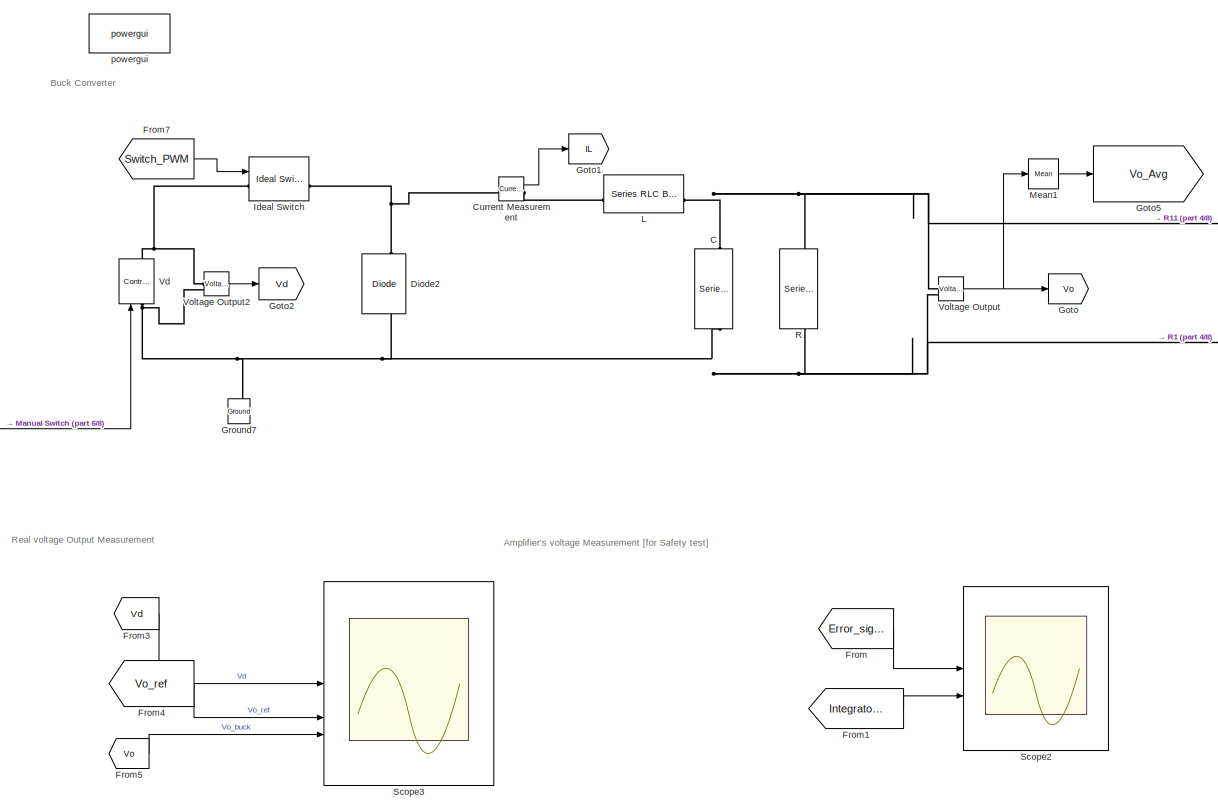
[diagram: root canvas - part 1/8, middle left region]
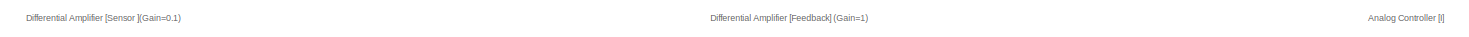
[diagram: root canvas - part 2/8, top center region]
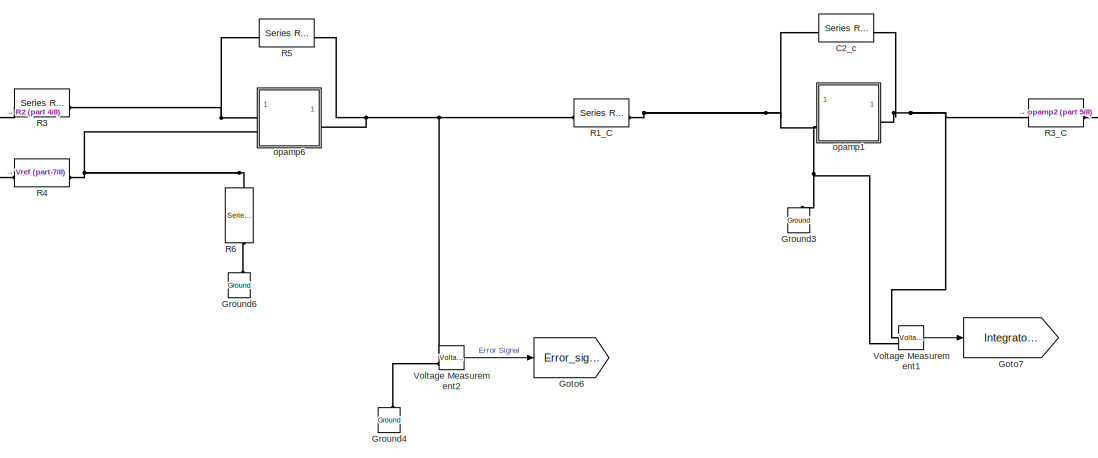
[diagram: root canvas - part 3/8, top right region]
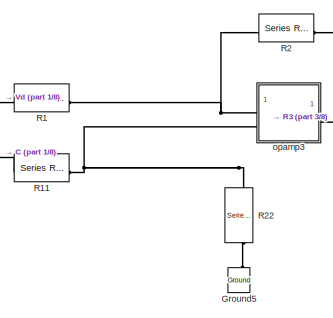
[diagram: root canvas - part 4/8, top center region]
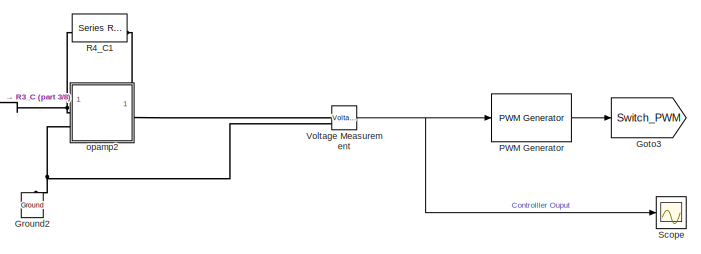
[diagram: root canvas - part 5/8, top right region]
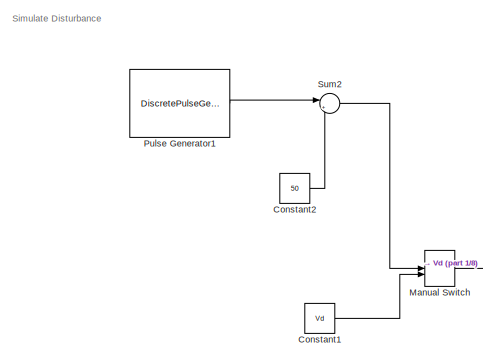
[diagram: root canvas - part 6/8, top left region]
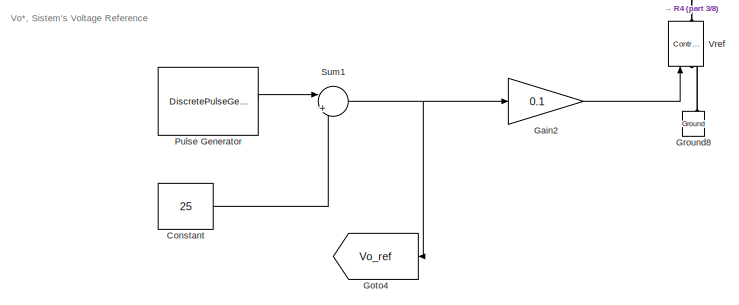
[diagram: root canvas - part 7/8, central region]
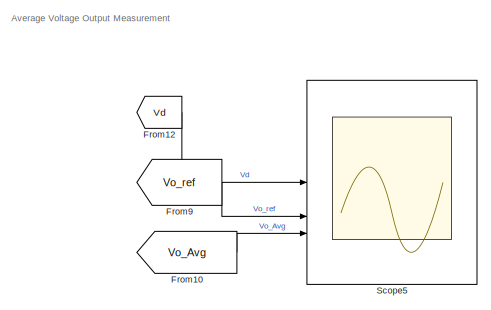
[diagram: root canvas - part 8/8, bottom left region]
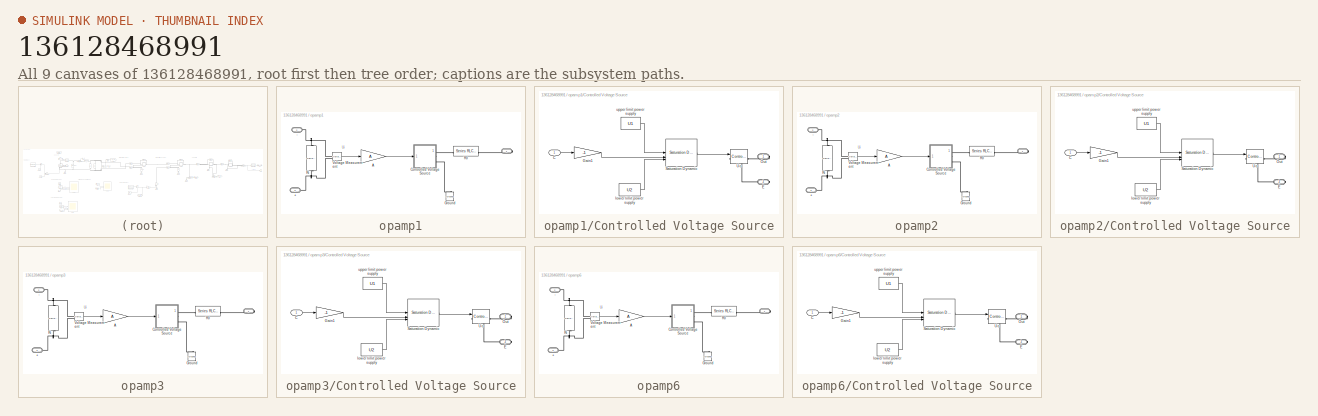
[diagram: thumbnail index - all 9 canvases of the model, root first then tree order]
MODEL slx_136128468991
KIND model
CONFIG AbsTol = auto
CONFIG EnableMultiTasking = off
CONFIG FixedStep = auto
CONFIG MaxStep = auto
CONFIG MinStep = auto
CONFIG RelTol = 1e-6
CONFIG SampleTimeConstraint = Unconstrained
CONFIG SolverName = VariableStepAuto
CONFIG StartTime = 0.0
CONFIG StopTime = 1
BLOCK [Reference] C  REF=spsSeriesRLCBranchLib/Series RLC Branch
  LibrarySourceBlock = sps_lib/Passives/Series RLC Branch
  NameLocation = left
  SourceBlock = spsSeriesRLCBranchLib/Series RLC Branch
  SourceType = Series RLC Branch
BLOCK [Reference] C2_c  REF=spsSeriesRLCBranchLib/Series RLC Branch
  LibrarySourceBlock = sps_lib/Passives/Series RLC Branch
  SourceBlock = spsSeriesRLCBranchLib/Series RLC Branch
  SourceType = Series RLC Branch
BLOCK [Constant] Constant
  Value = 25
BLOCK [Constant] Constant1
  Value = Vd
BLOCK [Constant] Constant2
  Value = 50
BLOCK [Reference] Current Measurement  REF=spsCurrentMeasurementLib/Current Measurement
  LibrarySourceBlock = sps_lib/Sensors and Measurements/Current Measurement
  SourceBlock = spsCurrentMeasurementLib/Current Measurement
  SourceType = Current Measurement
  UserDataPersistent = on
BLOCK [Reference] Diode2  REF=spsDiodeLib/Diode
  LibrarySourceBlock = sps_lib/Power Electronics/Diode
  NameLocation = right
  SourceBlock = spsDiodeLib/Diode
  SourceType = Diode
BLOCK [From] From
  GotoTag = Error_signal
BLOCK [From] From1
  GotoTag = Integrator_Output
BLOCK [From] From10
  GotoTag = Vo_Avg
BLOCK [From] From12
  GotoTag = Vd
BLOCK [From] From3
  GotoTag = Vd
BLOCK [From] From4
  GotoTag = Vo_ref
  NameLocation = top
BLOCK [From] From5
  GotoTag = Vo
BLOCK [From] From7
  GotoTag = Switch_PWM
BLOCK [From] From9
  GotoTag = Vo_ref
  NameLocation = top
BLOCK [Gain] Gain2
  Gain = 0.1
BLOCK [Goto] Goto
  GotoTag = Vo
BLOCK [Goto] Goto1
  GotoTag = IL
  NameLocation = top
BLOCK [Goto] Goto2
  GotoTag = Vd
BLOCK [Goto] Goto3
  GotoTag = Switch_PWM
BLOCK [Goto] Goto4
  GotoTag = Vo_ref
  NameLocation = top
BLOCK [Goto] Goto5
  GotoTag = Vo_Avg
BLOCK [Goto] Goto6
  GotoTag = Error_signal
  NameLocation = top
BLOCK [Goto] Goto7
  GotoTag = Integrator_Output
  NameLocation = top
BLOCK [Reference] Ground2  REF=spsGroundLib/Ground
  LibrarySourceBlock = sps_lib/Utilities/Ground
  NameLocation = right
  SourceBlock = spsGroundLib/Ground
  SourceType = Ground
BLOCK [Reference] Ground3  REF=spsGroundLib/Ground
  LibrarySourceBlock = sps_lib/Utilities/Ground
  NameLocation = right
  SourceBlock = spsGroundLib/Ground
  SourceType = Ground
BLOCK [Reference] Ground4  REF=spsGroundLib/Ground
  LibrarySourceBlock = sps_lib/Utilities/Ground
  NameLocation = right
  SourceBlock = spsGroundLib/Ground
  SourceType = Ground
BLOCK [Reference] Ground5  REF=spsGroundLib/Ground
  LibrarySourceBlock = sps_lib/Utilities/Ground
  NameLocation = right
  SourceBlock = spsGroundLib/Ground
  SourceType = Ground
BLOCK [Reference] Ground6  REF=spsGroundLib/Ground
  LibrarySourceBlock = sps_lib/Utilities/Ground
  NameLocation = right
  SourceBlock = spsGroundLib/Ground
  SourceType = Ground
BLOCK [Reference] Ground7  REF=spsGroundLib/Ground
  LibrarySourceBlock = sps_lib/Utilities/Ground
  NameLocation = right
  SourceBlock = spsGroundLib/Ground
  SourceType = Ground
BLOCK [Reference] Ground8  REF=spsGroundLib/Ground
  LibrarySourceBlock = sps_lib/Utilities/Ground
  NameLocation = right
  SourceBlock = spsGroundLib/Ground
  SourceType = Ground
BLOCK [Reference] Ideal Switch  REF=spsIdealSwitchLib/Ideal Switch
  LibrarySourceBlock = sps_lib/Power Electronics/Ideal Switch
  SourceBlock = spsIdealSwitchLib/Ideal Switch
  SourceType = Ideal Switch
BLOCK [Reference] L  REF=spsSeriesRLCBranchLib/Series RLC Branch
  LibrarySourceBlock = sps_lib/Passives/Series RLC Branch
  SourceBlock = spsSeriesRLCBranchLib/Series RLC Branch
  SourceType = Series RLC Branch
BLOCK [ManualSwitch] Manual Switch
BLOCK [Reference] Mean1  REF=spsMeanLib/Mean
  LibrarySourceBlock = sps_lib/Sensors and Measurements/Mean
  SourceBlock = spsMeanLib/Mean
  SourceType = Mean
BLOCK [Reference] PWM Generator  REF=eePwmGenerator/PWM Generator
  LibrarySourceBlock = ee_sl_lib/Pulse Width\nModulation/PWM Generator
  SourceBlock = eePwmGenerator/PWM Generator
  SourceType = PWM Generator
BLOCK [DiscretePulseGenerator] Pulse Generator
  Amplitude = 20
  Period = 0.5
  PhaseDelay = 0.2
  PulseType = Time based
  PulseWidth = 50
BLOCK [DiscretePulseGenerator] Pulse Generator1
  Amplitude = 20
  Period = 0.5
  PhaseDelay = 0.1
  PulseType = Time based
  PulseWidth = 50
BLOCK [Reference] R  REF=spsSeriesRLCBranchLib/Series RLC Branch
  LibrarySourceBlock = sps_lib/Passives/Series RLC Branch
  NameLocation = right
  SourceBlock = spsSeriesRLCBranchLib/Series RLC Branch
  SourceType = Series RLC Branch
BLOCK [Reference] R1  REF=spsSeriesRLCBranchLib/Series RLC Branch
  LibrarySourceBlock = sps_lib/Passives/Series RLC Branch
  SourceBlock = spsSeriesRLCBranchLib/Series RLC Branch
  SourceType = Series RLC Branch
BLOCK [Reference] R11  REF=spsSeriesRLCBranchLib/Series RLC Branch
  LibrarySourceBlock = sps_lib/Passives/Series RLC Branch
  SourceBlock = spsSeriesRLCBranchLib/Series RLC Branch
  SourceType = Series RLC Branch
BLOCK [Reference] R1_C  REF=spsSeriesRLCBranchLib/Series RLC Branch
  LibrarySourceBlock = sps_lib/Passives/Series RLC Branch
  SourceBlock = spsSeriesRLCBranchLib/Series RLC Branch
  SourceType = Series RLC Branch
BLOCK [Reference] R2  REF=spsSeriesRLCBranchLib/Series RLC Branch
  LibrarySourceBlock = sps_lib/Passives/Series RLC Branch
  SourceBlock = spsSeriesRLCBranchLib/Series RLC Branch
  SourceType = Series RLC Branch
BLOCK [Reference] R22  REF=spsSeriesRLCBranchLib/Series RLC Branch
  LibrarySourceBlock = sps_lib/Passives/Series RLC Branch
  NameLocation = left
  SourceBlock = spsSeriesRLCBranchLib/Series RLC Branch
  SourceType = Series RLC Branch
BLOCK [Reference] R3  REF=spsSeriesRLCBranchLib/Series RLC Branch
  LibrarySourceBlock = sps_lib/Passives/Series RLC Branch
  SourceBlock = spsSeriesRLCBranchLib/Series RLC Branch
  SourceType = Series RLC Branch
BLOCK [Reference] R3_C  REF=spsSeriesRLCBranchLib/Series RLC Branch
  LibrarySourceBlock = sps_lib/Passives/Series RLC Branch
  SourceBlock = spsSeriesRLCBranchLib/Series RLC Branch
  SourceType = Series RLC Branch
BLOCK [Reference] R4  REF=spsSeriesRLCBranchLib/Series RLC Branch
  LibrarySourceBlock = sps_lib/Passives/Series RLC Branch
  SourceBlock = spsSeriesRLCBranchLib/Series RLC Branch
  SourceType = Series RLC Branch
BLOCK [Reference] R4_C1  REF=spsSeriesRLCBranchLib/Series RLC Branch
  LibrarySourceBlock = sps_lib/Passives/Series RLC Branch
  SourceBlock = spsSeriesRLCBranchLib/Series RLC Branch
  SourceType = Series RLC Branch
BLOCK [Reference] R5  REF=spsSeriesRLCBranchLib/Series RLC Branch
  LibrarySourceBlock = sps_lib/Passives/Series RLC Branch
  SourceBlock = spsSeriesRLCBranchLib/Series RLC Branch
  SourceType = Series RLC Branch
BLOCK [Reference] R6  REF=spsSeriesRLCBranchLib/Series RLC Branch
  LibrarySourceBlock = sps_lib/Passives/Series RLC Branch
  NameLocation = left
  SourceBlock = spsSeriesRLCBranchLib/Series RLC Branch
  SourceType = Series RLC Branch
BLOCK [Scope] Scope
  Floating = off
  NumInputPorts = 1
  ScopeSpecificationString = Simulink.scopes.TimeScopeBlockCfg('CurrentConfiguration', extmgr.ConfigurationSet(extmgr.Configuration('Core','General UI',true),extmgr.Configuration('Core','Source UI',true),extmgr.Configuration('Sources','WiredSimulink',true,'DataLoggingVariableName','ScopeData2'),extmgr.Configuration('Visuals','Time Domain',true,'SerializedDisplays',{struct('MinYLimReal','-0.0625','MaxYLimReal','0.56251','YLabe...<+1718ch>
BLOCK [Scope] Scope2
  Floating = off
  NumInputPorts = 2
  ScopeSpecificationString = Simulink.scopes.TimeScopeBlockCfg('CurrentConfiguration', extmgr.ConfigurationSet(extmgr.Configuration('Core','General UI',true),extmgr.Configuration('Core','Source UI',true),extmgr.Configuration('Sources','WiredSimulink',true,'DataLoggingVariableName','ScopeData1'),extmgr.Configuration('Visuals','Time Domain',true,'SerializedDisplays',{struct('MinYLimReal','-15.38662','MaxYLimReal','29.4874','YLa...<+1801ch>
BLOCK [Scope] Scope3
  Floating = off
  NumInputPorts = 3
  ScopeSpecificationString = Simulink.scopes.TimeScopeBlockCfg('CurrentConfiguration', extmgr.ConfigurationSet(extmgr.Configuration('Core','General UI',true),extmgr.Configuration('Core','Source UI',true),extmgr.Configuration('Sources','WiredSimulink',true,'DataLoggingVariableName','ScopeData2'),extmgr.Configuration('Visuals','Time Domain',true,'SerializedDisplays',{struct('MinYLimReal','-8.76661','MaxYLimReal','78.89946','YLa...<+1764ch>
BLOCK [Scope] Scope5
  Floating = off
  NumInputPorts = 3
  ScopeSpecificationString = Simulink.scopes.TimeScopeBlockCfg('CurrentConfiguration', extmgr.ConfigurationSet(extmgr.Configuration('Core','General UI',true),extmgr.Configuration('Core','Source UI',true),extmgr.Configuration('Sources','WiredSimulink',true),extmgr.Configuration('Visuals','Time Domain',true,'SerializedDisplays',{struct('MinYLimReal','-8.76661','MaxYLimReal','78.89946','YLabelReal','','MinYLimMag','0.00000','Max...<+1725ch>
BLOCK [Sum] Sum1
  Inputs = |++
BLOCK [Sum] Sum2
  Inputs = |++
BLOCK [Reference] Vd  REF=spsControlledVoltageSourceLib/Controlled Voltage Source
  LibrarySourceBlock = sps_lib/Sources/Controlled Voltage Source
  NameLocation = left
  SourceBlock = spsControlledVoltageSourceLib/Controlled Voltage Source
  SourceType = Controlled Voltage Source
BLOCK [Reference] Voltage Measurement  REF=spsVoltageMeasurementLib/Voltage Measurement
  LibrarySourceBlock = sps_lib/Sensors and Measurements/Voltage Measurement
  SourceBlock = spsVoltageMeasurementLib/Voltage Measurement
  SourceType = Voltage Measurement
  UserDataPersistent = on
BLOCK [Reference] Voltage Measurement1  REF=spsVoltageMeasurementLib/Voltage Measurement
  LibrarySourceBlock = sps_lib/Sensors and Measurements/Voltage Measurement
  SourceBlock = spsVoltageMeasurementLib/Voltage Measurement
  SourceType = Voltage Measurement
  UserDataPersistent = on
BLOCK [Reference] Voltage Measurement2  REF=spsVoltageMeasurementLib/Voltage Measurement
  LibrarySourceBlock = sps_lib/Sensors and Measurements/Voltage Measurement
  SourceBlock = spsVoltageMeasurementLib/Voltage Measurement
  SourceType = Voltage Measurement
  UserDataPersistent = on
BLOCK [Reference] Voltage Output  REF=spsVoltageMeasurementLib/Voltage Measurement
  LibrarySourceBlock = sps_lib/Sensors and Measurements/Voltage Measurement
  SourceBlock = spsVoltageMeasurementLib/Voltage Measurement
  SourceType = Voltage Measurement
  UserDataPersistent = on
BLOCK [Reference] Voltage Output2  REF=spsVoltageMeasurementLib/Voltage Measurement
  LibrarySourceBlock = sps_lib/Sensors and Measurements/Voltage Measurement
  SourceBlock = spsVoltageMeasurementLib/Voltage Measurement
  SourceType = Voltage Measurement
  UserDataPersistent = on
BLOCK [Reference] Vref  REF=spsControlledVoltageSourceLib/Controlled Voltage Source
  LibrarySourceBlock = sps_lib/Sources/Controlled Voltage Source
  NameLocation = left
  SourceBlock = spsControlledVoltageSourceLib/Controlled Voltage Source
  SourceType = Controlled Voltage Source
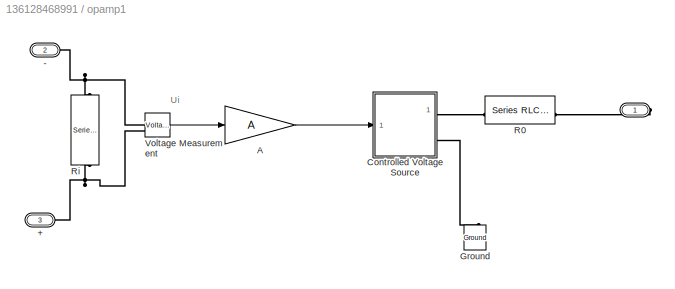
BLOCK [SubSystem] opamp1
BLOCK [PMIOPort] opamp1/ 
  Side = Right
BLOCK [PMIOPort] opamp1/+
  NameLocation = top
  Port = 3
  Side = Left
BLOCK [PMIOPort] opamp1/-
  NameLocation = top
  Port = 2
  Side = Left
BLOCK [Gain] opamp1/A
  Gain = A
BLOCK [SubSystem] opamp1/Controlled Voltage Source
BLOCK [Inport] opamp1/Controlled Voltage Source/C
BLOCK [PMIOPort] opamp1/Controlled Voltage Source/E
  Port = 2
  Side = Right
BLOCK [Gain] opamp1/Controlled Voltage Source/Gain1
  Gain = -1
BLOCK [PMIOPort] opamp1/Controlled Voltage Source/Out
  Side = Right
BLOCK [Reference] opamp1/Controlled Voltage Source/Saturation Dynamic  REF=simulink/Discontinuities/Saturation
Dynamic
  SourceBlock = simulink/Discontinuities/Saturation\nDynamic
  SourceType = Saturation Dynamic
BLOCK [Reference] opamp1/Controlled Voltage Source/Uo  REF=spsControlledVoltageSourceLib/Controlled Voltage Source
  LibrarySourceBlock = sps_lib/Sources/Controlled Voltage Source
  SourceBlock = spsControlledVoltageSourceLib/Controlled Voltage Source
  SourceType = Controlled Voltage Source
BLOCK [Constant] opamp1/Controlled Voltage Source/lower limit power supply
  Value = U2
BLOCK [Constant] opamp1/Controlled Voltage Source/upper limit power supply
  NameLocation = top
  Value = U1
BLOCK [Reference] opamp1/Ground  REF=spsGroundLib/Ground
  LibrarySourceBlock = sps_lib/Utilities/Ground
  NameLocation = right
  SourceBlock = spsGroundLib/Ground
  SourceType = Ground
BLOCK [Reference] opamp1/R0  REF=spsSeriesRLCBranchLib/Series RLC Branch
  LibrarySourceBlock = sps_lib/Passives/Series RLC Branch
  NameLocation = top
  SourceBlock = spsSeriesRLCBranchLib/Series RLC Branch
  SourceType = Series RLC Branch
BLOCK [Reference] opamp1/Ri  REF=spsSeriesRLCBranchLib/Series RLC Branch
  LibrarySourceBlock = sps_lib/Passives/Series RLC Branch
  NameLocation = left
  SourceBlock = spsSeriesRLCBranchLib/Series RLC Branch
  SourceType = Series RLC Branch
BLOCK [Reference] opamp1/Voltage Measurement  REF=spsVoltageMeasurementLib/Voltage Measurement
  LibrarySourceBlock = sps_lib/Sensors and Measurements/Voltage Measurement
  SourceBlock = spsVoltageMeasurementLib/Voltage Measurement
  SourceType = Voltage Measurement
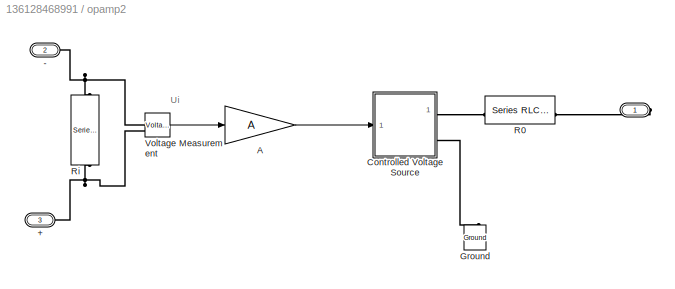
BLOCK [SubSystem] opamp2
BLOCK [PMIOPort] opamp2/ 
  Side = Right
BLOCK [PMIOPort] opamp2/+
  NameLocation = top
  Port = 3
  Side = Left
BLOCK [PMIOPort] opamp2/-
  NameLocation = top
  Port = 2
  Side = Left
BLOCK [Gain] opamp2/A
  Gain = A
BLOCK [SubSystem] opamp2/Controlled Voltage Source
BLOCK [Inport] opamp2/Controlled Voltage Source/C
BLOCK [PMIOPort] opamp2/Controlled Voltage Source/E
  Port = 2
  Side = Right
BLOCK [Gain] opamp2/Controlled Voltage Source/Gain1
  Gain = -1
BLOCK [PMIOPort] opamp2/Controlled Voltage Source/Out
  Side = Right
BLOCK [Reference] opamp2/Controlled Voltage Source/Saturation Dynamic  REF=simulink/Discontinuities/Saturation
Dynamic
  SourceBlock = simulink/Discontinuities/Saturation\nDynamic
  SourceType = Saturation Dynamic
BLOCK [Reference] opamp2/Controlled Voltage Source/Uo  REF=spsControlledVoltageSourceLib/Controlled Voltage Source
  LibrarySourceBlock = sps_lib/Sources/Controlled Voltage Source
  SourceBlock = spsControlledVoltageSourceLib/Controlled Voltage Source
  SourceType = Controlled Voltage Source
BLOCK [Constant] opamp2/Controlled Voltage Source/lower limit power supply
  Value = U2
BLOCK [Constant] opamp2/Controlled Voltage Source/upper limit power supply
  NameLocation = top
  Value = U1
BLOCK [Reference] opamp2/Ground  REF=spsGroundLib/Ground
  LibrarySourceBlock = sps_lib/Utilities/Ground
  NameLocation = right
  SourceBlock = spsGroundLib/Ground
  SourceType = Ground
BLOCK [Reference] opamp2/R0  REF=spsSeriesRLCBranchLib/Series RLC Branch
  LibrarySourceBlock = sps_lib/Passives/Series RLC Branch
  NameLocation = top
  SourceBlock = spsSeriesRLCBranchLib/Series RLC Branch
  SourceType = Series RLC Branch
BLOCK [Reference] opamp2/Ri  REF=spsSeriesRLCBranchLib/Series RLC Branch
  LibrarySourceBlock = sps_lib/Passives/Series RLC Branch
  NameLocation = left
  SourceBlock = spsSeriesRLCBranchLib/Series RLC Branch
  SourceType = Series RLC Branch
BLOCK [Reference] opamp2/Voltage Measurement  REF=spsVoltageMeasurementLib/Voltage Measurement
  LibrarySourceBlock = sps_lib/Sensors and Measurements/Voltage Measurement
  SourceBlock = spsVoltageMeasurementLib/Voltage Measurement
  SourceType = Voltage Measurement
BLOCK [SubSystem] opamp3
BLOCK [PMIOPort] opamp3/ 
  Side = Right
BLOCK [PMIOPort] opamp3/+
  NameLocation = top
  Port = 3
  Side = Left
BLOCK [PMIOPort] opamp3/-
  NameLocation = top
  Port = 2
  Side = Left
BLOCK [Gain] opamp3/A
  Gain = A
BLOCK [SubSystem] opamp3/Controlled Voltage Source
BLOCK [Inport] opamp3/Controlled Voltage Source/C
BLOCK [PMIOPort] opamp3/Controlled Voltage Source/E
  Port = 2
  Side = Right
BLOCK [Gain] opamp3/Controlled Voltage Source/Gain1
  Gain = -1
BLOCK [PMIOPort] opamp3/Controlled Voltage Source/Out
  Side = Right
BLOCK [Reference] opamp3/Controlled Voltage Source/Saturation Dynamic  REF=simulink/Discontinuities/Saturation
Dynamic
  SourceBlock = simulink/Discontinuities/Saturation\nDynamic
  SourceType = Saturation Dynamic
BLOCK [Reference] opamp3/Controlled Voltage Source/Uo  REF=spsControlledVoltageSourceLib/Controlled Voltage Source
  LibrarySourceBlock = sps_lib/Sources/Controlled Voltage Source
  SourceBlock = spsControlledVoltageSourceLib/Controlled Voltage Source
  SourceType = Controlled Voltage Source
BLOCK [Constant] opamp3/Controlled Voltage Source/lower limit power supply
  Value = U2
BLOCK [Constant] opamp3/Controlled Voltage Source/upper limit power supply
  NameLocation = top
  Value = U1
BLOCK [Reference] opamp3/Ground  REF=spsGroundLib/Ground
  LibrarySourceBlock = sps_lib/Utilities/Ground
  NameLocation = right
  SourceBlock = spsGroundLib/Ground
  SourceType = Ground
BLOCK [Reference] opamp3/R0  REF=spsSeriesRLCBranchLib/Series RLC Branch
  LibrarySourceBlock = sps_lib/Passives/Series RLC Branch
  NameLocation = top
  SourceBlock = spsSeriesRLCBranchLib/Series RLC Branch
  SourceType = Series RLC Branch
BLOCK [Reference] opamp3/Ri  REF=spsSeriesRLCBranchLib/Series RLC Branch
  LibrarySourceBlock = sps_lib/Passives/Series RLC Branch
  NameLocation = left
  SourceBlock = spsSeriesRLCBranchLib/Series RLC Branch
  SourceType = Series RLC Branch
BLOCK [Reference] opamp3/Voltage Measurement  REF=spsVoltageMeasurementLib/Voltage Measurement
  LibrarySourceBlock = sps_lib/Sensors and Measurements/Voltage Measurement
  SourceBlock = spsVoltageMeasurementLib/Voltage Measurement
  SourceType = Voltage Measurement
BLOCK [SubSystem] opamp6
BLOCK [PMIOPort] opamp6/ 
  Side = Right
BLOCK [PMIOPort] opamp6/+
  NameLocation = top
  Port = 3
  Side = Left
BLOCK [PMIOPort] opamp6/-
  NameLocation = top
  Port = 2
  Side = Left
BLOCK [Gain] opamp6/A
  Gain = A
BLOCK [SubSystem] opamp6/Controlled Voltage Source
BLOCK [Inport] opamp6/Controlled Voltage Source/C
BLOCK [PMIOPort] opamp6/Controlled Voltage Source/E
  Port = 2
  Side = Right
BLOCK [Gain] opamp6/Controlled Voltage Source/Gain1
  Gain = -1
BLOCK [PMIOPort] opamp6/Controlled Voltage Source/Out
  Side = Right
BLOCK [Reference] opamp6/Controlled Voltage Source/Saturation Dynamic  REF=simulink/Discontinuities/Saturation
Dynamic
  SourceBlock = simulink/Discontinuities/Saturation\nDynamic
  SourceType = Saturation Dynamic
BLOCK [Reference] opamp6/Controlled Voltage Source/Uo  REF=spsControlledVoltageSourceLib/Controlled Voltage Source
  LibrarySourceBlock = sps_lib/Sources/Controlled Voltage Source
  SourceBlock = spsControlledVoltageSourceLib/Controlled Voltage Source
  SourceType = Controlled Voltage Source
BLOCK [Constant] opamp6/Controlled Voltage Source/lower limit power supply
  Value = U2
BLOCK [Constant] opamp6/Controlled Voltage Source/upper limit power supply
  NameLocation = top
  Value = U1
BLOCK [Reference] opamp6/Ground  REF=spsGroundLib/Ground
  LibrarySourceBlock = sps_lib/Utilities/Ground
  NameLocation = right
  SourceBlock = spsGroundLib/Ground
  SourceType = Ground
BLOCK [Reference] opamp6/R0  REF=spsSeriesRLCBranchLib/Series RLC Branch
  LibrarySourceBlock = sps_lib/Passives/Series RLC Branch
  NameLocation = top
  SourceBlock = spsSeriesRLCBranchLib/Series RLC Branch
  SourceType = Series RLC Branch
BLOCK [Reference] opamp6/Ri  REF=spsSeriesRLCBranchLib/Series RLC Branch
  LibrarySourceBlock = sps_lib/Passives/Series RLC Branch
  NameLocation = left
  SourceBlock = spsSeriesRLCBranchLib/Series RLC Branch
  SourceType = Series RLC Branch
BLOCK [Reference] opamp6/Voltage Measurement  REF=spsVoltageMeasurementLib/Voltage Measurement
  LibrarySourceBlock = sps_lib/Sensors and Measurements/Voltage Measurement
  SourceBlock = spsVoltageMeasurementLib/Voltage Measurement
  SourceType = Voltage Measurement
BLOCK [Reference] powergui  REF=spspowerguiLib/powergui
  LibrarySourceBlock = sps_lib/powergui
  Priority = 1
  SourceBlock = spspowerguiLib/powergui
  SourceType = PSB option menu block
ANNOTATION (root): Amplifier's voltage Measurement [for Safety test]
ANNOTATION (root): Analog Controller [I]
ANNOTATION (root): Average Voltage Output Measurement
ANNOTATION (root): Buck Converter
ANNOTATION (root): Differential Amplifier [Feedback] (Gain=1)
ANNOTATION (root): Differential Amplifier [Sensor ](Gain=0.1)
ANNOTATION (root): Real voltage Output Measurement
ANNOTATION (root): Simulate Disturbance
ANNOTATION (root): Vo*, Sistem's Voltage Reference
ANNOTATION opamp1: Ui
ANNOTATION opamp2: Ui
ANNOTATION opamp3: Ui
ANNOTATION opamp6: Ui
LINE Constant1:1 -> Manual Switch:2
LINE Constant2:1 -> Sum2:2
LINE Constant:1 -> Sum1:2
LINE Current Measurement:1 -> Goto1:1
LINE From10:1 -> Scope5:3
LINE From12:1 -> Scope5:1
LINE From1:1 -> Scope2:2
LINE From3:1 -> Scope3:1
LINE From4:1 -> Scope3:2
LINE From5:1 -> Scope3:3
LINE From7:1 -> Ideal Switch:1
LINE From9:1 -> Scope5:2
LINE From:1 -> Scope2:1
LINE Gain2:1 -> Vref:1
LINE Manual Switch:1 -> Vd:1
LINE Mean1:1 -> Goto5:1
LINE PWM Generator:1 -> Goto3:1
LINE Pulse Generator1:1 -> Sum2:1
LINE Pulse Generator:1 -> Sum1:1
NET Sum1:1 -> Gain2:1, Goto4:1
LINE Sum2:1 -> Manual Switch:1
LINE Voltage Measurement1:1 -> Goto7:1
LINE Voltage Measurement2:1 -> Goto6:1
NET Voltage Measurement:1 -> PWM Generator:1, Scope:1
LINE Voltage Output2:1 -> Goto2:1
NET Voltage Output:1 -> Goto:1, Mean1:1
LINE opamp1/A:1 -> opamp1/Controlled Voltage Source:1
LINE opamp1/Controlled Voltage Source/C:1 -> opamp1/Controlled Voltage Source/Gain1:1
LINE opamp1/Controlled Voltage Source/Gain1:1 -> opamp1/Controlled Voltage Source/Saturation Dynamic:2
LINE opamp1/Controlled Voltage Source/Saturation Dynamic:1 -> opamp1/Controlled Voltage Source/Uo:1
LINE opamp1/Controlled Voltage Source/lower limit power supply:1 -> opamp1/Controlled Voltage Source/Saturation Dynamic:3
LINE opamp1/Controlled Voltage Source/upper limit power supply:1 -> opamp1/Controlled Voltage Source/Saturation Dynamic:1
LINE opamp1/Voltage Measurement:1 -> opamp1/A:1
LINE opamp2/A:1 -> opamp2/Controlled Voltage Source:1
LINE opamp2/Controlled Voltage Source/C:1 -> opamp2/Controlled Voltage Source/Gain1:1
LINE opamp2/Controlled Voltage Source/Gain1:1 -> opamp2/Controlled Voltage Source/Saturation Dynamic:2
LINE opamp2/Controlled Voltage Source/Saturation Dynamic:1 -> opamp2/Controlled Voltage Source/Uo:1
LINE opamp2/Controlled Voltage Source/lower limit power supply:1 -> opamp2/Controlled Voltage Source/Saturation Dynamic:3
LINE opamp2/Controlled Voltage Source/upper limit power supply:1 -> opamp2/Controlled Voltage Source/Saturation Dynamic:1
LINE opamp2/Voltage Measurement:1 -> opamp2/A:1
LINE opamp3/A:1 -> opamp3/Controlled Voltage Source:1
LINE opamp3/Controlled Voltage Source/C:1 -> opamp3/Controlled Voltage Source/Gain1:1
LINE opamp3/Controlled Voltage Source/Gain1:1 -> opamp3/Controlled Voltage Source/Saturation Dynamic:2
LINE opamp3/Controlled Voltage Source/Saturation Dynamic:1 -> opamp3/Controlled Voltage Source/Uo:1
LINE opamp3/Controlled Voltage Source/lower limit power supply:1 -> opamp3/Controlled Voltage Source/Saturation Dynamic:3
LINE opamp3/Controlled Voltage Source/upper limit power supply:1 -> opamp3/Controlled Voltage Source/Saturation Dynamic:1
LINE opamp3/Voltage Measurement:1 -> opamp3/A:1
LINE opamp6/A:1 -> opamp6/Controlled Voltage Source:1
LINE opamp6/Controlled Voltage Source/C:1 -> opamp6/Controlled Voltage Source/Gain1:1
LINE opamp6/Controlled Voltage Source/Gain1:1 -> opamp6/Controlled Voltage Source/Saturation Dynamic:2
LINE opamp6/Controlled Voltage Source/Saturation Dynamic:1 -> opamp6/Controlled Voltage Source/Uo:1
LINE opamp6/Controlled Voltage Source/lower limit power supply:1 -> opamp6/Controlled Voltage Source/Saturation Dynamic:3
LINE opamp6/Controlled Voltage Source/upper limit power supply:1 -> opamp6/Controlled Voltage Source/Saturation Dynamic:1
LINE opamp6/Voltage Measurement:1 -> opamp6/A:1
PNET net1: C2_c:LConn1 -- R1_C:RConn1 -- opamp1:LConn1
PNET net2: C2_c:RConn1 -- R3_C:LConn1 -- Voltage Measurement1:LConn1 -- opamp1:RConn1
PNET net3: C:LConn1 -- L:RConn1 -- R11:LConn1 -- R:LConn1 -- Voltage Output:LConn1
PNET net4: C:RConn1 -- Diode2:LConn1 -- Ground7:LConn1 -- R1:LConn1 -- R:RConn1 -- Vd:LConn1 -- Voltage Output2:LConn2 -- Voltage Output:LConn2
PNET net5: Current Measurement:LConn1 -- Diode2:RConn1 -- Ideal Switch:RConn1
PLINE Current Measurement:RConn1 -- L:LConn1
PNET net6: Ground2:LConn1 -- Voltage Measurement:LConn2 -- opamp2:LConn2
PNET net7: Ground3:LConn1 -- Voltage Measurement1:LConn2 -- opamp1:LConn2
PLINE Ground4:LConn1 -- Voltage Measurement2:LConn2
PLINE Ground5:LConn1 -- R22:RConn1
PLINE Ground6:LConn1 -- R6:RConn1
PLINE Ground8:LConn1 -- Vref:LConn1
PNET net8: Ideal Switch:LConn1 -- Vd:RConn1 -- Voltage Output2:LConn1
PNET net9: R11:RConn1 -- R22:LConn1 -- opamp3:LConn2
PNET net10: R1:RConn1 -- R2:LConn1 -- opamp3:LConn1
PNET net11: R1_C:LConn1 -- R5:RConn1 -- Voltage Measurement2:LConn1 -- opamp6:RConn1
PNET net12: R2:RConn1 -- R3:LConn1 -- opamp3:RConn1
PNET net13: R3:RConn1 -- R5:LConn1 -- opamp6:LConn1
PNET net14: R3_C:RConn1 -- R4_C1:LConn1 -- opamp2:LConn1
PLINE R4:LConn1 -- Vref:RConn1
PNET net15: R4:RConn1 -- R6:LConn1 -- opamp6:LConn2
PNET net16: R4_C1:RConn1 -- Voltage Measurement:LConn1 -- opamp2:RConn1
PLINE opamp1/ :RConn1 -- opamp1/R0:LConn1
PNET net17: opamp1/+:RConn1 -- opamp1/Ri:RConn1 -- opamp1/Voltage Measurement:LConn2
PNET net18: opamp1/-:RConn1 -- opamp1/Ri:LConn1 -- opamp1/Voltage Measurement:LConn1
PLINE opamp1/Controlled Voltage Source/E:RConn1 -- opamp1/Controlled Voltage Source/Uo:LConn1
PLINE opamp1/Controlled Voltage Source/Out:RConn1 -- opamp1/Controlled Voltage Source/Uo:RConn1
PLINE opamp1/Controlled Voltage Source:RConn1 -- opamp1/R0:RConn1
PLINE opamp1/Controlled Voltage Source:RConn2 -- opamp1/Ground:LConn1
PLINE opamp2/ :RConn1 -- opamp2/R0:LConn1
PNET net19: opamp2/+:RConn1 -- opamp2/Ri:RConn1 -- opamp2/Voltage Measurement:LConn2
PNET net20: opamp2/-:RConn1 -- opamp2/Ri:LConn1 -- opamp2/Voltage Measurement:LConn1
PLINE opamp2/Controlled Voltage Source/E:RConn1 -- opamp2/Controlled Voltage Source/Uo:LConn1
PLINE opamp2/Controlled Voltage Source/Out:RConn1 -- opamp2/Controlled Voltage Source/Uo:RConn1
PLINE opamp2/Controlled Voltage Source:RConn1 -- opamp2/R0:RConn1
PLINE opamp2/Controlled Voltage Source:RConn2 -- opamp2/Ground:LConn1
PLINE opamp3/ :RConn1 -- opamp3/R0:LConn1
PNET net21: opamp3/+:RConn1 -- opamp3/Ri:RConn1 -- opamp3/Voltage Measurement:LConn2
PNET net22: opamp3/-:RConn1 -- opamp3/Ri:LConn1 -- opamp3/Voltage Measurement:LConn1
PLINE opamp3/Controlled Voltage Source/E:RConn1 -- opamp3/Controlled Voltage Source/Uo:LConn1
PLINE opamp3/Controlled Voltage Source/Out:RConn1 -- opamp3/Controlled Voltage Source/Uo:RConn1
PLINE opamp3/Controlled Voltage Source:RConn1 -- opamp3/R0:RConn1
PLINE opamp3/Controlled Voltage Source:RConn2 -- opamp3/Ground:LConn1
PLINE opamp6/ :RConn1 -- opamp6/R0:LConn1
PNET net23: opamp6/+:RConn1 -- opamp6/Ri:RConn1 -- opamp6/Voltage Measurement:LConn2
PNET net24: opamp6/-:RConn1 -- opamp6/Ri:LConn1 -- opamp6/Voltage Measurement:LConn1
PLINE opamp6/Controlled Voltage Source/E:RConn1 -- opamp6/Controlled Voltage Source/Uo:LConn1
PLINE opamp6/Controlled Voltage Source/Out:RConn1 -- opamp6/Controlled Voltage Source/Uo:RConn1
PLINE opamp6/Controlled Voltage Source:RConn1 -- opamp6/R0:RConn1
PLINE opamp6/Controlled Voltage Source:RConn2 -- opamp6/Ground:LConn1
note: NET lines group one-source signal fan-out (src -> all destinations, sorted); 1:1 wires keep LINE; PNET lines group multi-terminal physical nets as a canonical sorted terminal list (undirected conserving connections); 2-terminal nets keep the pairwise PLINE form
